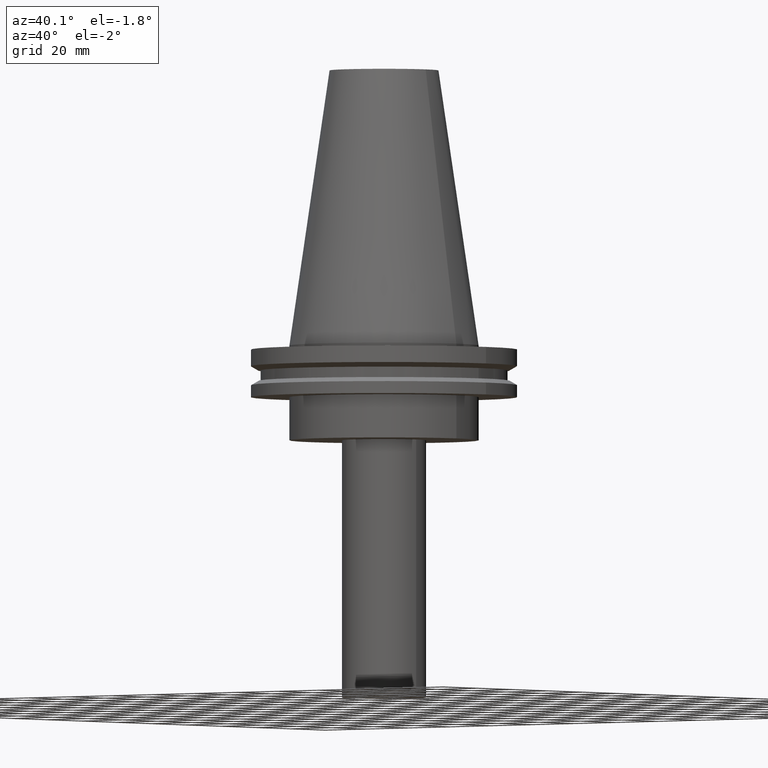
[diagram: clean part render]
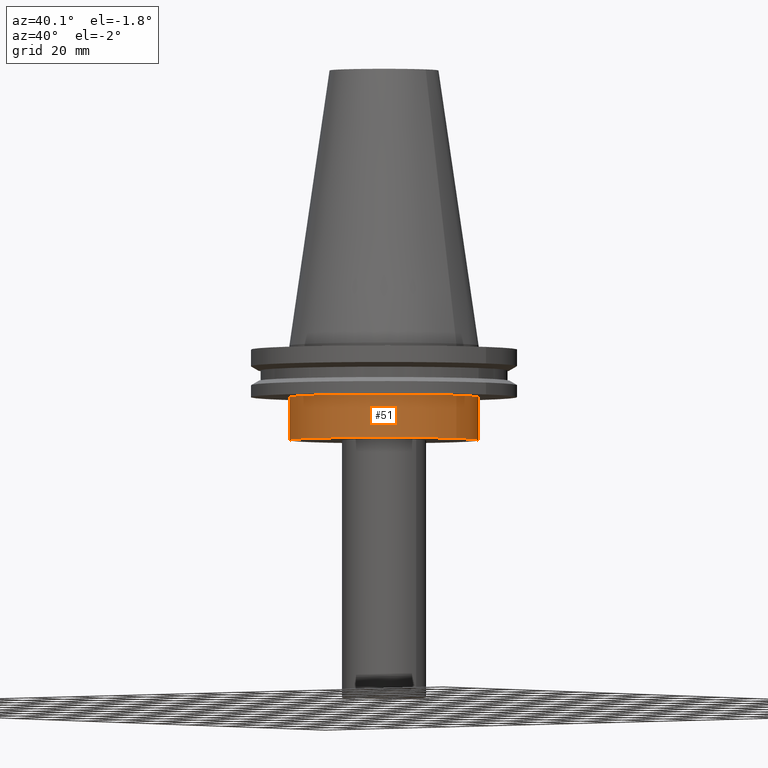
[diagram: same view with one face highlighted and labeled with its STEP entity id]
A machine part, auxiliary view. The second image highlights one B-rep face of the part: STEP entity #51.
In plain terms, the highlighted cylindrical surface (bore or boss wall) has radius 34.925 mm, axis along (-0, -0, 1).
Its self-contained STEP definition (entity closure, byte-faithful):
#21 = ORIENTED_EDGE ( 'NONE', *, *, #348, .T. ) ;
#26 = DIRECTION ( 'NONE',  ( -0.000000000000000000, -0.000000000000000000, 1.000000000000000000 ) ) ;
#49 = CARTESIAN_POINT ( 'NONE',  ( 0.000000000000000000, 0.000000000000000000, 101.5999999999999943 ) ) ;
#51 = ADVANCED_FACE ( 'NONE', ( #262, #109 ), #196, .T. ) ;
#70 = CARTESIAN_POINT ( 'NONE',  ( 34.92499999999999716, 0.000000000000000000, -19.04999999999999716 ) ) ;
#79 = EDGE_LOOP ( 'NONE', ( #21 ) ) ;
#109 = FACE_OUTER_BOUND ( 'NONE', #79, .T. ) ;
#117 = CIRCLE ( 'NONE', #309, 34.92499999999999716 ) ;
#120 = CIRCLE ( 'NONE', #343, 34.92499999999999716 ) ;
#147 = DIRECTION ( 'NONE',  ( 1.000000000000000000, 0.000000000000000000, 0.000000000000000000 ) ) ;
#172 = CARTESIAN_POINT ( 'NONE',  ( 0.000000000000000000, 0.000000000000000000, -19.04999999999999716 ) ) ;
#184 = EDGE_CURVE ( 'NONE', #347, #347, #117, .T. ) ;
#190 = DIRECTION ( 'NONE',  ( 1.000000000000000000, 0.000000000000000000, 0.000000000000000000 ) ) ;
#196 = CYLINDRICAL_SURFACE ( 'NONE', #210, 34.92499999999999716 ) ;
#210 = AXIS2_PLACEMENT_3D ( 'NONE', #49, #26, #147 ) ;
#218 = CARTESIAN_POINT ( 'NONE',  ( 34.92499999999999716, 0.000000000000000000, -35.00000000000000000 ) ) ;
#262 = FACE_OUTER_BOUND ( 'NONE', #338, .T. ) ;
#279 = VERTEX_POINT ( 'NONE', #218 ) ;
#300 = DIRECTION ( 'NONE',  ( -0.000000000000000000, -0.000000000000000000, 1.000000000000000000 ) ) ;
#309 = AXIS2_PLACEMENT_3D ( 'NONE', #172, #300, #365 ) ;
#321 = CARTESIAN_POINT ( 'NONE',  ( 0.000000000000000000, 0.000000000000000000, -35.00000000000000000 ) ) ;
#338 = EDGE_LOOP ( 'NONE', ( #388 ) ) ;
#343 = AXIS2_PLACEMENT_3D ( 'NONE', #321, #352, #190 ) ;
#347 = VERTEX_POINT ( 'NONE', #70 ) ;
#348 = EDGE_CURVE ( 'NONE', #279, #279, #120, .T. ) ;
#352 = DIRECTION ( 'NONE',  ( -0.000000000000000000, -0.000000000000000000, 1.000000000000000000 ) ) ;
#365 = DIRECTION ( 'NONE',  ( 1.000000000000000000, 0.000000000000000000, 0.000000000000000000 ) ) ;
#388 = ORIENTED_EDGE ( 'NONE', *, *, #184, .F. ) ;